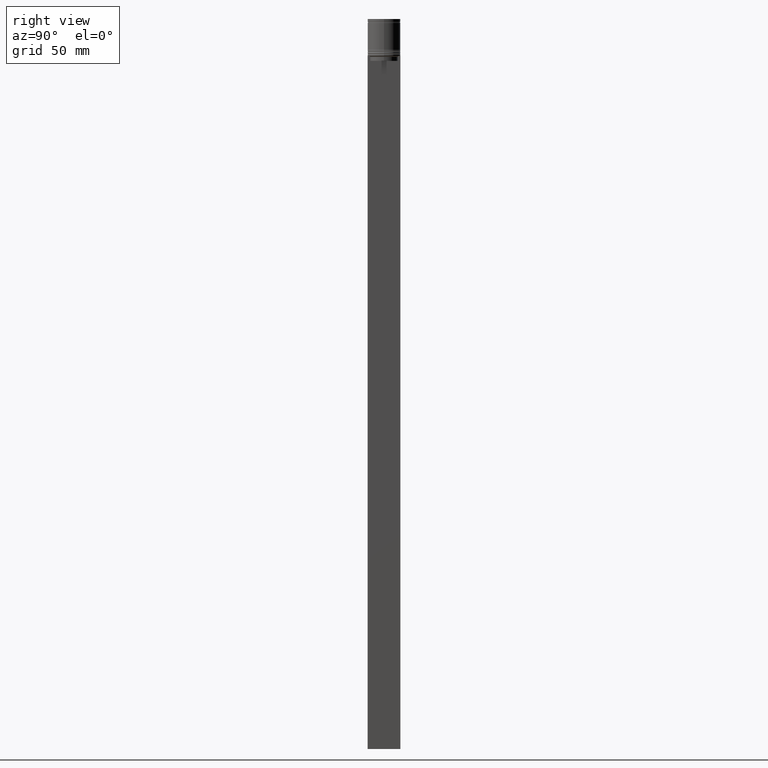
[diagram: clean part render]
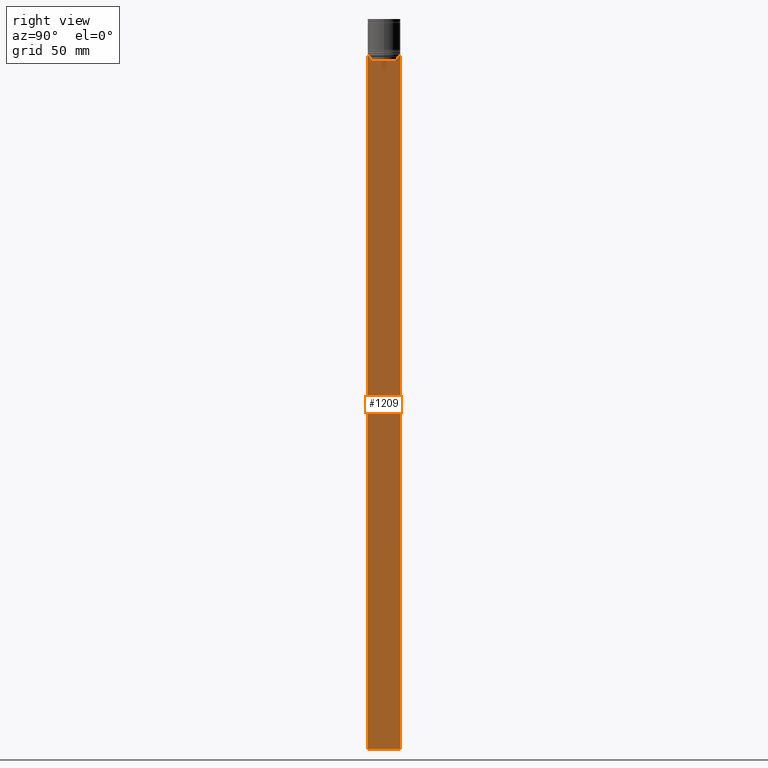
[diagram: same view with one face highlighted and labeled with its STEP entity id]
A machine part, right view. The second image highlights one B-rep face of the part: STEP entity #1209.
In plain terms, the highlighted planar face has unit normal (-1, 0, 0).
Its self-contained STEP definition (entity closure, byte-faithful):
#2 = LINE ( 'NONE', #1296, #1741 ) ;
#8 = EDGE_CURVE ( 'NONE', #1974, #920, #1930, .T. ) ;
#100 = LINE ( 'NONE', #709, #219 ) ;
#135 = EDGE_LOOP ( 'NONE', ( #1237, #1415, #1831, #471, #1300, #158, #764, #1758, #1086, #933, #1789, #644 ) ) ;
#137 = B_SPLINE_CURVE_WITH_KNOTS ( 'NONE', 3,
 ( #225, #871, #1413, #528 ),
 .UNSPECIFIED., .F., .F.,
 ( 4, 4 ),
 ( 0.03898465126933124691, 0.03969388910599652709 ),
 .UNSPECIFIED. ) ;
#148 = VERTEX_POINT ( 'NONE', #368 ) ;
#150 = DIRECTION ( 'NONE',  ( 0.000000000000000000, 0.000000000000000000, 1.000000000000000000 ) ) ;
#158 = ORIENTED_EDGE ( 'NONE', *, *, #179, .T. ) ;
#162 = DIRECTION ( 'NONE',  ( 0.000000000000000000, -1.000000000000000000, 0.000000000000000000 ) ) ;
#179 = EDGE_CURVE ( 'NONE', #589, #1909, #137, .T. ) ;
#191 = CARTESIAN_POINT ( 'NONE',  ( 0.5000000000000000000, -10.00000000000000178, -22.50000000000000000 ) ) ;
#196 = CARTESIAN_POINT ( 'NONE',  ( 0.5000000000000000000, 9.999999999999998224, -2.475015605499213844 ) ) ;
#201 = DIRECTION ( 'NONE',  ( 0.000000000000000000, -1.000000000000000000, 0.000000000000000000 ) ) ;
#207 = LINE ( 'NONE', #196, #1806 ) ;
#214 = VERTEX_POINT ( 'NONE', #1994 ) ;
#219 = VECTOR ( 'NONE', #369, 1000.000000000000000 ) ;
#225 = CARTESIAN_POINT ( 'NONE',  ( 0.5000000000000000000, -8.385105843100610912, -23.00000000000000000 ) ) ;
#269 = DIRECTION ( 'NONE',  ( -1.000000000000000000, 0.000000000000000000, 0.000000000000000000 ) ) ;
#288 = DIRECTION ( 'NONE',  ( -0.000000000000000000, -0.000000000000000000, 1.000000000000000000 ) ) ;
#329 = CARTESIAN_POINT ( 'NONE',  ( 0.5000000000000000000, -10.00000000000000178, -22.50000000000000000 ) ) ;
#365 = LINE ( 'NONE', #492, #543 ) ;
#368 = CARTESIAN_POINT ( 'NONE',  ( 0.5000000000000000000, 9.999999999999998224, -444.5000000000000000 ) ) ;
#369 = DIRECTION ( 'NONE',  ( 0.000000000000000000, -1.000000000000000000, 0.000000000000000000 ) ) ;
#403 = LINE ( 'NONE', #1197, #545 ) ;
#417 = EDGE_CURVE ( 'NONE', #1289, #148, #207, .T. ) ;
#428 = CARTESIAN_POINT ( 'NONE',  ( 0.5000000000000000000, 8.719005771582343911, -22.66667453442325453 ) ) ;
#438 = CARTESIAN_POINT ( 'NONE',  ( 0.5000000000000000000, -10.00000000000000178, -22.50000000000000000 ) ) ;
#456 = LINE ( 'NONE', #1420, #1871 ) ;
#471 = ORIENTED_EDGE ( 'NONE', *, *, #1059, .T. ) ;
#490 = EDGE_CURVE ( 'NONE', #1525, #801, #365, .T. ) ;
#492 = CARTESIAN_POINT ( 'NONE',  ( 0.5000000000000000000, 8.385105843100610912, 0.000000000000000000 ) ) ;
#502 = VERTEX_POINT ( 'NONE', #1509 ) ;
#528 = CARTESIAN_POINT ( 'NONE',  ( 0.5000000000000000000, -8.885943956609226646, -22.50000000000000000 ) ) ;
#543 = VECTOR ( 'NONE', #1022, 1000.000000000000000 ) ;
#545 = VECTOR ( 'NONE', #1040, 1000.000000000000000 ) ;
#560 = CARTESIAN_POINT ( 'NONE',  ( 0.5000000000000000000, -8.885943956609226646, -22.50000000000000000 ) ) ;
#584 = EDGE_CURVE ( 'NONE', #502, #148, #1369, .T. ) ;
#589 = VERTEX_POINT ( 'NONE', #1361 ) ;
#636 = CARTESIAN_POINT ( 'NONE',  ( 0.5000000000000000000, 8.885943956609226646, -22.50000000000000000 ) ) ;
#644 = ORIENTED_EDGE ( 'NONE', *, *, #695, .T. ) ;
#673 = DIRECTION ( 'NONE',  ( 0.000000000000000000, 0.000000000000000000, -1.000000000000000000 ) ) ;
#677 = CARTESIAN_POINT ( 'NONE',  ( 0.5000000000000000000, -10.00000000000000178, -22.50000000000000000 ) ) ;
#689 = VECTOR ( 'NONE', #201, 1000.000000000000000 ) ;
#695 = EDGE_CURVE ( 'NONE', #1289, #1731, #749, .T. ) ;
#709 = CARTESIAN_POINT ( 'NONE',  ( 0.5000000000000000000, -10.00000000000000178, -22.50000000000000000 ) ) ;
#711 = EDGE_CURVE ( 'NONE', #920, #502, #456, .T. ) ;
#749 = LINE ( 'NONE', #438, #1438 ) ;
#757 = EDGE_CURVE ( 'NONE', #214, #1525, #1123, .T. ) ;
#764 = ORIENTED_EDGE ( 'NONE', *, *, #1379, .T. ) ;
#769 = EDGE_CURVE ( 'NONE', #1918, #589, #2, .T. ) ;
#801 = VERTEX_POINT ( 'NONE', #1256 ) ;
#871 = CARTESIAN_POINT ( 'NONE',  ( 0.5000000000000000000, -8.552060194457766329, -22.83334167772666845 ) ) ;
#920 = VERTEX_POINT ( 'NONE', #677 ) ;
#933 = ORIENTED_EDGE ( 'NONE', *, *, #584, .T. ) ;
#957 = CARTESIAN_POINT ( 'NONE',  ( 0.5000000000000000000, 8.552060201981371179, -22.83334167021640582 ) ) ;
#1022 = DIRECTION ( 'NONE',  ( 0.000000000000000000, 0.000000000000000000, -1.000000000000000000 ) ) ;
#1040 = DIRECTION ( 'NONE',  ( 0.000000000000000000, -1.000000000000000000, 0.000000000000000000 ) ) ;
#1041 = CARTESIAN_POINT ( 'NONE',  ( 0.5000000000000000000, -10.00000000000000178, -444.5000000000000000 ) ) ;
#1059 = EDGE_CURVE ( 'NONE', #801, #1918, #403, .T. ) ;
#1086 = ORIENTED_EDGE ( 'NONE', *, *, #711, .T. ) ;
#1123 = B_SPLINE_CURVE_WITH_KNOTS ( 'NONE', 3,
 ( #636, #428, #957, #1617 ),
 .UNSPECIFIED., .F., .F.,
 ( 4, 4 ),
 ( 0.01511546479386905242, 0.01582316445439077568 ),
 .UNSPECIFIED. ) ;
#1197 = CARTESIAN_POINT ( 'NONE',  ( 0.5000000000000000000, 8.400000000000000355, -25.50000000000000000 ) ) ;
#1209 = ADVANCED_FACE ( 'NONE', ( #1920 ), #1278, .F. ) ;
#1214 = DIRECTION ( 'NONE',  ( 0.000000000000000000, 1.000000000000000000, 0.000000000000000000 ) ) ;
#1215 = CARTESIAN_POINT ( 'NONE',  ( 0.5000000000000000000, -8.385105843100610912, -25.50000000000000000 ) ) ;
#1237 = ORIENTED_EDGE ( 'NONE', *, *, #1418, .T. ) ;
#1256 = CARTESIAN_POINT ( 'NONE',  ( 0.5000000000000000000, 8.385105843100610912, -25.50000000000000000 ) ) ;
#1278 = PLANE ( 'NONE',  #1908 ) ;
#1289 = VERTEX_POINT ( 'NONE', #1797 ) ;
#1296 = CARTESIAN_POINT ( 'NONE',  ( 0.5000000000000000000, -8.385105843100610912, 0.000000000000000000 ) ) ;
#1300 = ORIENTED_EDGE ( 'NONE', *, *, #769, .T. ) ;
#1304 = LINE ( 'NONE', #329, #689 ) ;
#1361 = CARTESIAN_POINT ( 'NONE',  ( 0.5000000000000000000, -8.385105843100610912, -23.00000000000000000 ) ) ;
#1369 = LINE ( 'NONE', #1041, #1648 ) ;
#1379 = EDGE_CURVE ( 'NONE', #1909, #1974, #1304, .T. ) ;
#1397 = CARTESIAN_POINT ( 'NONE',  ( 0.5000000000000000000, -9.887365675446622149, -22.50000000000000000 ) ) ;
#1403 = CARTESIAN_POINT ( 'NONE',  ( 0.5000000000000000000, -10.00000000000000178, -2.475015605499213844 ) ) ;
#1413 = CARTESIAN_POINT ( 'NONE',  ( 0.5000000000000000000, -8.719005764482785636, -22.66667454151159333 ) ) ;
#1415 = ORIENTED_EDGE ( 'NONE', *, *, #757, .T. ) ;
#1418 = EDGE_CURVE ( 'NONE', #1731, #214, #100, .T. ) ;
#1420 = CARTESIAN_POINT ( 'NONE',  ( 0.5000000000000000000, -10.00000000000000178, -2.475015605499213844 ) ) ;
#1438 = VECTOR ( 'NONE', #1593, 1000.000000000000000 ) ;
#1471 = VECTOR ( 'NONE', #162, 1000.000000000000000 ) ;
#1509 = CARTESIAN_POINT ( 'NONE',  ( 0.5000000000000000000, -10.00000000000000178, -444.5000000000000000 ) ) ;
#1525 = VERTEX_POINT ( 'NONE', #1704 ) ;
#1593 = DIRECTION ( 'NONE',  ( 0.000000000000000000, -1.000000000000000000, 0.000000000000000000 ) ) ;
#1617 = CARTESIAN_POINT ( 'NONE',  ( 0.5000000000000000000, 8.385105843100610912, -23.00000000000000000 ) ) ;
#1648 = VECTOR ( 'NONE', #1214, 1000.000000000000000 ) ;
#1664 = CARTESIAN_POINT ( 'NONE',  ( 0.5000000000000000000, 9.887365675446622149, -22.50000000000000000 ) ) ;
#1704 = CARTESIAN_POINT ( 'NONE',  ( 0.5000000000000000000, 8.385105843100610912, -23.00000000000000000 ) ) ;
#1731 = VERTEX_POINT ( 'NONE', #1664 ) ;
#1741 = VECTOR ( 'NONE', #288, 1000.000000000000000 ) ;
#1756 = DIRECTION ( 'NONE',  ( 0.000000000000000000, 0.000000000000000000, -1.000000000000000000 ) ) ;
#1758 = ORIENTED_EDGE ( 'NONE', *, *, #8, .T. ) ;
#1789 = ORIENTED_EDGE ( 'NONE', *, *, #417, .F. ) ;
#1797 = CARTESIAN_POINT ( 'NONE',  ( 0.5000000000000000000, 9.999999999999998224, -22.50000000000000000 ) ) ;
#1806 = VECTOR ( 'NONE', #673, 1000.000000000000000 ) ;
#1831 = ORIENTED_EDGE ( 'NONE', *, *, #490, .T. ) ;
#1871 = VECTOR ( 'NONE', #1756, 1000.000000000000000 ) ;
#1908 = AXIS2_PLACEMENT_3D ( 'NONE', #1403, #269, #150 ) ;
#1909 = VERTEX_POINT ( 'NONE', #560 ) ;
#1918 = VERTEX_POINT ( 'NONE', #1215 ) ;
#1920 = FACE_OUTER_BOUND ( 'NONE', #135, .T. ) ;
#1930 = LINE ( 'NONE', #191, #1471 ) ;
#1974 = VERTEX_POINT ( 'NONE', #1397 ) ;
#1994 = CARTESIAN_POINT ( 'NONE',  ( 0.5000000000000000000, 8.885943956609226646, -22.50000000000000000 ) ) ;